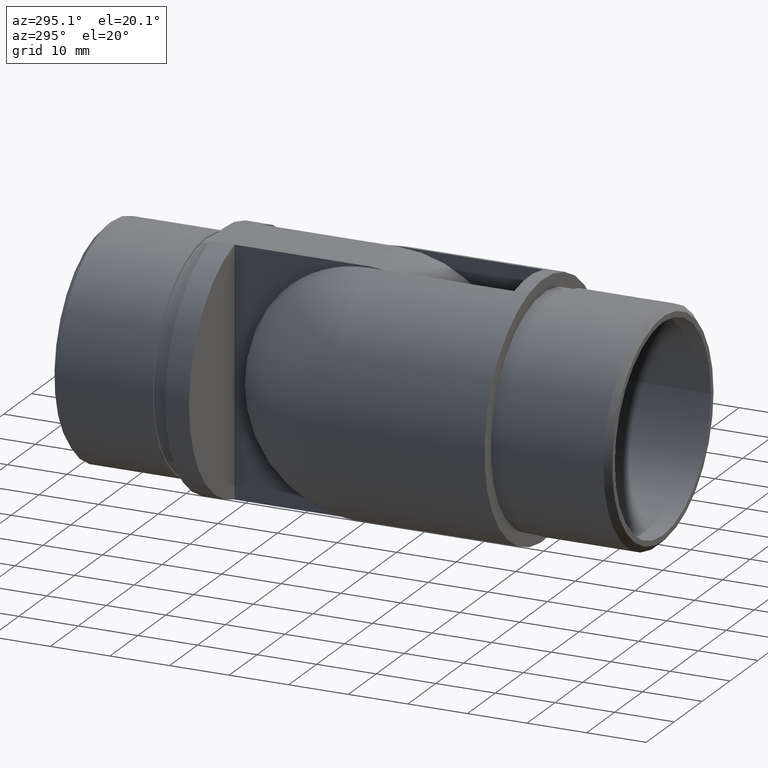
[diagram: clean part render]
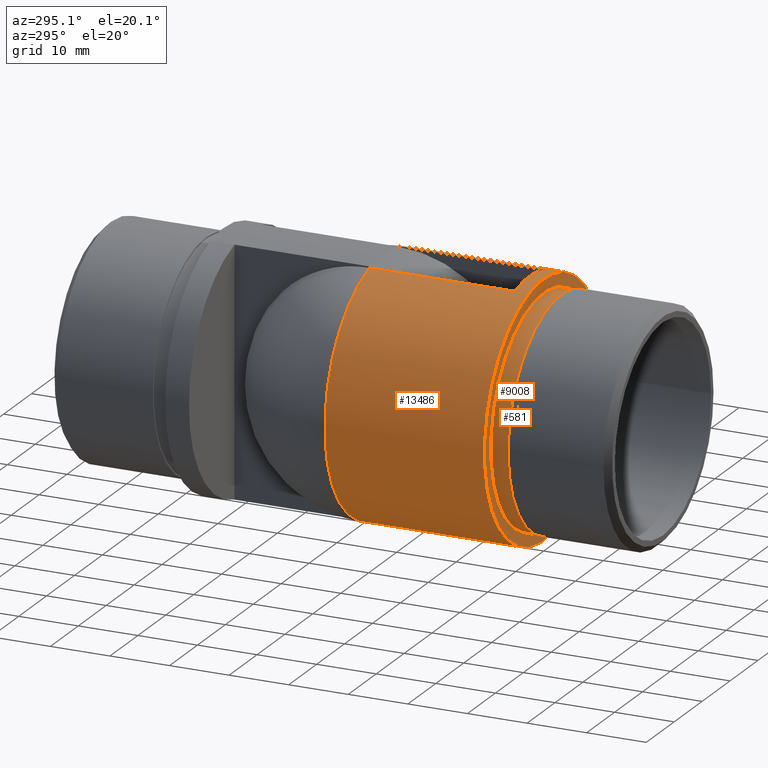
[diagram: same view with one multi-face feature highlighted, each face labeled with its STEP entity id]
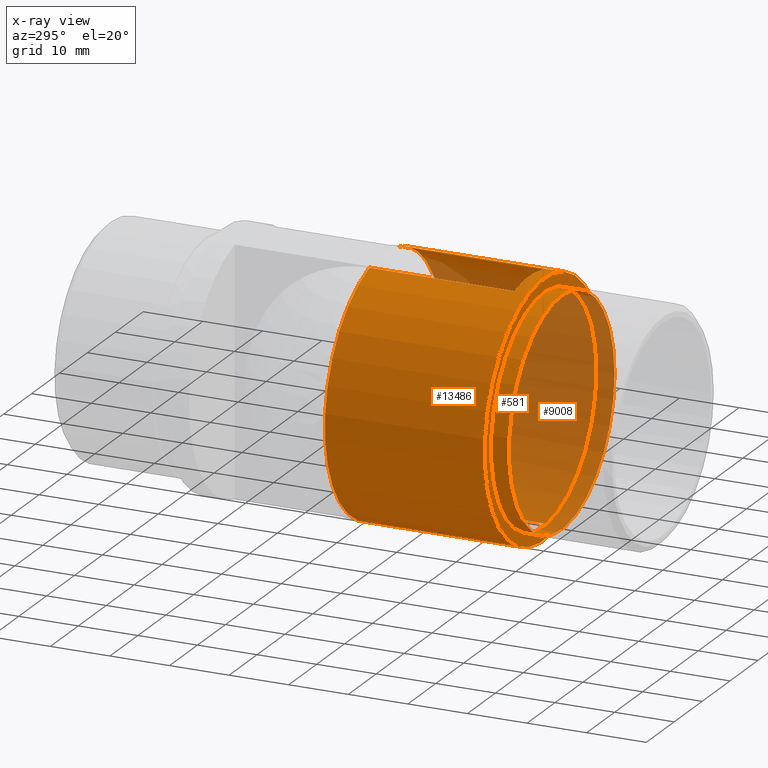
[diagram: x-ray of the same camera — body ghosted, the whole feature saturated]
A machine part, auxiliary view. The highlighted faces form ONE feature: a stepped (counterbored) hole: 2 coaxial cylindrical walls of radii 18.95 -> 21.2 mm joined by 1 annular planar shoulder face(s). The faces share edges in the B-rep.
The next image is the same camera in x-ray: the body ghosted and the whole hole feature saturated, so the bore chain is visible through the body.
Their STEP definitions:
[1] entity #13486 (Cylinder):
#40 = CARTESIAN_POINT ( 'NONE',  ( -5.249999999999998200, 26.80000000000000100, -20.53965676441551100 ) ) ;
#45 = ORIENTED_EDGE ( 'NONE', *, *, #2275, .F. ) ;
#142 = AXIS2_PLACEMENT_3D ( 'NONE', #1946, #17730, #7717 ) ;
#425 = CARTESIAN_POINT ( 'NONE',  ( 20.27359826025922000, 21.34359700877996600, -6.210934722845198800 ) ) ;
#494 = CARTESIAN_POINT ( 'NONE',  ( 20.59587053299181400, 20.25071701206385600, 5.045923669225064000 ) ) ;
#615 = DIRECTION ( 'NONE',  ( 6.837611295239389200E-017, -1.000000000000000000, -0.0000000000000000000 ) ) ;
#617 = CARTESIAN_POINT ( 'NONE',  ( 21.11694561521077800, 18.76567666383996200, 1.893736985380490800 ) ) ;
#682 = CARTESIAN_POINT ( 'NONE',  ( 21.17856188585539100, 18.60464637921042600, 1.093180675490439200 ) ) ;
#784 = DIRECTION ( 'NONE',  ( 6.837611295239389200E-017, -1.000000000000000000, -0.0000000000000000000 ) ) ;
#803 = CARTESIAN_POINT ( 'NONE',  ( 19.52888885728011900, 26.80000000000000400, -8.250000000000003600 ) ) ;
#867 = CARTESIAN_POINT ( 'NONE',  ( 5.250000000000005300, 6.830473686658685800E-016, 20.53965676441551100 ) ) ;
#1084 = LINE ( 'NONE', #5030, #8361 ) ;
#1223 = AXIS2_PLACEMENT_3D ( 'NONE', #7494, #7422, #17502 ) ;
#1671 = DIRECTION ( 'NONE',  ( 1.000000000000000000, 0.0000000000000000000, 0.0000000000000000000 ) ) ;
#1855 = VERTEX_POINT ( 'NONE', #5168 ) ;
#1874 = CARTESIAN_POINT ( 'NONE',  ( 19.52888885728011600, 26.24919490253268600, 8.250000000000007100 ) ) ;
#1946 = CARTESIAN_POINT ( 'NONE',  ( 1.238185012568044800E-031, -1.810844400339220100E-015, 0.0000000000000000000 ) ) ;
#2064 = CARTESIAN_POINT ( 'NONE',  ( -1.709402823809847200E-016, 2.500000000000000000, 0.0000000000000000000 ) ) ;
#2146 = LINE ( 'NONE', #15422, #11361 ) ;
#2206 = DIRECTION ( 'NONE',  ( 1.000000000000000000, 6.837611295239389200E-017, 0.0000000000000000000 ) ) ;
#2213 = CARTESIAN_POINT ( 'NONE',  ( 5.250000000000005300, 2.499999999999998700, 20.53965676441551100 ) ) ;
#2273 = CARTESIAN_POINT ( 'NONE',  ( 19.55765040324953200, 25.70529746351498800, -8.181637213754099100 ) ) ;
#2275 = EDGE_CURVE ( 'NONE', #14526, #15760, #16616, .T. ) ;
#2342 = CARTESIAN_POINT ( 'NONE',  ( 19.82601233956383200, 23.37174293850827000, -7.508762516186904700 ) ) ;
#2691 = FACE_OUTER_BOUND ( 'NONE', #5196, .T. ) ;
#2692 = EDGE_CURVE ( 'NONE', #8276, #10515, #17042, .T. ) ;
#2712 = ORIENTED_EDGE ( 'NONE', *, *, #18632, .T. ) ;
#2731 = ORIENTED_EDGE ( 'NONE', *, *, #17052, .F. ) ;
#3038 = LINE ( 'NONE', #867, #6435 ) ;
#3130 = EDGE_CURVE ( 'NONE', #13964, #14526, #13172, .T. ) ;
#3287 = CARTESIAN_POINT ( 'NONE',  ( 19.52888885728011900, 26.80000000000000400, -8.250000000000003600 ) ) ;
#3348 = CARTESIAN_POINT ( 'NONE',  ( 19.64517656579535700, 24.65006197968018900, 7.969591014790497100 ) ) ;
#3414 = CARTESIAN_POINT ( 'NONE',  ( 20.48887439059558000, 20.59140977172586400, 5.458865154775916800 ) ) ;
#3546 = CARTESIAN_POINT ( 'NONE',  ( 19.86549537052957600, 23.12551023275266400, 7.406188432139717100 ) ) ;
#3803 = CARTESIAN_POINT ( 'NONE',  ( 5.250000000000001800, 26.80000000000000100, 20.53965676441551100 ) ) ;
#4457 = EDGE_CURVE ( 'NONE', #8276, #18642, #9871, .T. ) ;
#4622 = DIRECTION ( 'NONE',  ( 6.837611295239389200E-017, -1.000000000000000000, -0.0000000000000000000 ) ) ;
#4704 = CARTESIAN_POINT ( 'NONE',  ( -5.249999999999995600, -6.830473686658673000E-016, -20.53965676441551100 ) ) ;
#4806 = CARTESIAN_POINT ( 'NONE',  ( 19.74559743585137300, 23.87229009600193300, 7.717756490944959900 ) ) ;
#4864 = CARTESIAN_POINT ( 'NONE',  ( 21.17407782886826700, 18.61680449465214000, -1.083095233639173500 ) ) ;
#4926 = CARTESIAN_POINT ( 'NONE',  ( 19.61807164526330600, 24.91290217732305800, 8.035830780628682400 ) ) ;
#4988 = CARTESIAN_POINT ( 'NONE',  ( 20.27316576508428300, 21.35355934539015600, 6.202466219610845300 ) ) ;
#5030 = CARTESIAN_POINT ( 'NONE',  ( -5.249999999999995600, -6.830473686658673000E-016, 20.53965676441551100 ) ) ;
#5168 = CARTESIAN_POINT ( 'NONE',  ( 21.19999999999999900, -3.612708057484694600E-016, 0.0000000000000000000 ) ) ;
#5196 = EDGE_LOOP ( 'NONE', ( #13362 ) ) ;
#5662 = AXIS2_PLACEMENT_3D ( 'NONE', #16281, #4622, #6129 ) ;
#5771 = ORIENTED_EDGE ( 'NONE', *, *, #8887, .T. ) ;
#5988 = DIRECTION ( 'NONE',  ( 6.837611295239389200E-017, -1.000000000000000000, -0.0000000000000000000 ) ) ;
#6067 = ORIENTED_EDGE ( 'NONE', *, *, #2692, .T. ) ;
#6129 = DIRECTION ( 'NONE',  ( 1.000000000000000000, 0.0000000000000000000, 0.0000000000000000000 ) ) ;
#6191 = CIRCLE ( 'NONE', #14055, 21.19999999999999600 ) ;
#6294 = DIRECTION ( 'NONE',  ( 2.065146995210484900E-016, 1.000000000000000000, 0.0000000000000000000 ) ) ;
#6388 = CARTESIAN_POINT ( 'NONE',  ( 20.11255397933488000, 21.98497431148832200, 6.704484393133963500 ) ) ;
#6435 = VECTOR ( 'NONE', #14065, 1000.000000000000000 ) ;
#6446 = CARTESIAN_POINT ( 'NONE',  ( 21.09122638265026900, 18.83333241509187100, 2.160675098070035500 ) ) ;
#6511 = CARTESIAN_POINT ( 'NONE',  ( 20.99753037849307100, 19.08455554526353700, 2.933678434760251400 ) ) ;
#6579 = CARTESIAN_POINT ( 'NONE',  ( 0.0000000000000000000, 0.0000000000000000000, 0.0000000000000000000 ) ) ;
#7422 = DIRECTION ( 'NONE',  ( 6.837611295239389200E-017, -1.000000000000000000, -0.0000000000000000000 ) ) ;
#7475 = CIRCLE ( 'NONE', #7916, 21.19999999999999600 ) ;
#7494 = CARTESIAN_POINT ( 'NONE',  ( -1.832479827124156500E-015, 26.80000000000000100, 0.0000000000000000000 ) ) ;
#7648 = CARTESIAN_POINT ( 'NONE',  ( 20.64761604697038800, 20.09431074088749000, -4.813289260449787200 ) ) ;
#7707 = CIRCLE ( 'NONE', #142, 21.19999999999999900 ) ;
#7710 = CARTESIAN_POINT ( 'NONE',  ( 20.79519931272447800, 19.64852888558960200, 4.148603889439098900 ) ) ;
#7717 = DIRECTION ( 'NONE',  ( 1.000000000000000000, 6.837611295239389200E-017, 0.0000000000000000000 ) ) ;
#7760 = CARTESIAN_POINT ( 'NONE',  ( -1.709402823809847200E-016, 2.500000000000000000, 0.0000000000000000000 ) ) ;
#7839 = CARTESIAN_POINT ( 'NONE',  ( 21.19974245855503300, 18.55066180387651500, 0.5542095061953471500 ) ) ;
#7898 = CARTESIAN_POINT ( 'NONE',  ( 21.15849631988322700, 18.65709639814895500, -1.352437538479934300 ) ) ;
#7916 = AXIS2_PLACEMENT_3D ( 'NONE', #2064, #14828, #16400 ) ;
#7942 = CARTESIAN_POINT ( 'NONE',  ( 5.250000000000005300, 2.499999999999998700, -20.53965676441551100 ) ) ;
#7990 = CARTESIAN_POINT ( 'NONE',  ( -5.249999999999996400, 26.80000000000000100, 20.53965676441551500 ) ) ;
#8276 = VERTEX_POINT ( 'NONE', #13701 ) ;
#8361 = VECTOR ( 'NONE', #784, 1000.000000000000000 ) ;
#8668 = CARTESIAN_POINT ( 'NONE',  ( 5.250000000000003600, 26.80000000000000100, -20.53965676441551100 ) ) ;
#8887 = EDGE_CURVE ( 'NONE', #14471, #15760, #12204, .T. ) ;
#8910 = ORIENTED_EDGE ( 'NONE', *, *, #3130, .F. ) ;
#9102 = CARTESIAN_POINT ( 'NONE',  ( 20.43582040085573900, 20.77687645385850200, -5.644100342962176800 ) ) ;
#9159 = CARTESIAN_POINT ( 'NONE',  ( 20.88546439064928300, 19.39302912338451200, -3.673753017804800300 ) ) ;
#9260 = DIRECTION ( 'NONE',  ( 1.000000000000000000, -2.045664476387744500E-016, 0.0000000000000000000 ) ) ;
#9281 = CARTESIAN_POINT ( 'NONE',  ( 21.20012527474675300, 18.54967808166271200, -0.2621935477816822500 ) ) ;
#9411 = CARTESIAN_POINT ( 'NONE',  ( 19.53471904926210500, 26.25051598634353000, -8.236238732553147200 ) ) ;
#9466 = CARTESIAN_POINT ( 'NONE',  ( 19.64193688291723900, 24.62895070445216600, -7.977973454131766400 ) ) ;
#9871 = B_SPLINE_CURVE_WITH_KNOTS ( 'NONE', 3,
 ( #17724, #1874, #12131, #4926, #3348, #14964, #4806, #3546, #13558, #6388, #10748, #4988, #13360, #3414, #494, #7710, #16404, #6511, #15029, #6446, #617, #682, #7839, #9281, #13422, #4864, #7898, #17921, #12205, #9159, #13623, #7648, #10557, #17665, #9102, #425, #10501, #11935, #14832, #14902, #2342, #12383, #9466, #17987, #2273, #9411, #10818, #803 ),
 .UNSPECIFIED., .F., .F.,
 ( 4, 2, 2, 2, 2, 2, 2, 2, 2, 2, 2, 2, 2, 2, 2, 2, 2, 2, 2, 2, 2, 2, 2, 4 ),
 ( 0.0000000000000000000, 0.001627534562146831000, 0.002441301843220241800, 0.003255069124293652800, 0.004882603686440474900, 0.005696370967513892000, 0.006510138248587307400, 0.008137672810734150300, 0.009765207372880991400, 0.01057897465395441300, 0.01139274193502783300, 0.01302027649717467400, 0.01383404377824809500, 0.01464781105932151800, 0.01627534562146836000, 0.01790288018361520200, 0.01871664746468862000, 0.01953041474576203800, 0.02115794930790888500, 0.02197171658898230300, 0.02278548387005572100, 0.02441301843220254300, 0.02522678571327595000, 0.02604055299434935400 ),
 .UNSPECIFIED. ) ;
#10423 = EDGE_CURVE ( 'NONE', #1855, #1855, #7707, .T. ) ;
#10494 = CARTESIAN_POINT ( 'NONE',  ( -1.832479827124156500E-015, 26.80000000000000100, 0.0000000000000000000 ) ) ;
#10501 = CARTESIAN_POINT ( 'NONE',  ( 20.16553893495708400, 21.75431675288486500, -6.549103662222624900 ) ) ;
#10515 = VERTEX_POINT ( 'NONE', #3803 ) ;
#10557 = CARTESIAN_POINT ( 'NONE',  ( 20.59615867333463900, 20.25396323857702200, -5.028346798361462300 ) ) ;
#10748 = CARTESIAN_POINT ( 'NONE',  ( 20.16589479011517800, 21.76752761044872700, 6.542822377078926400 ) ) ;
#10818 = CARTESIAN_POINT ( 'NONE',  ( 19.52888885728011900, 26.52453809431624200, -8.250000000000000000 ) ) ;
#10902 = EDGE_CURVE ( 'NONE', #14821, #18096, #7475, .T. ) ;
#11124 = EDGE_LOOP ( 'NONE', ( #15426, #6067, #17391, #11707, #15708, #5771, #45, #8910, #2731, #2712 ) ) ;
#11361 = VECTOR ( 'NONE', #14132, 1000.000000000000000 ) ;
#11707 = ORIENTED_EDGE ( 'NONE', *, *, #10902, .F. ) ;
#11935 = CARTESIAN_POINT ( 'NONE',  ( 20.01253373008952300, 22.42154467634897600, -6.997386907337704200 ) ) ;
#12131 = CARTESIAN_POINT ( 'NONE',  ( 19.55220157462567700, 25.70880850925883400, 8.195404763618441300 ) ) ;
#12204 = CIRCLE ( 'NONE', #1223, 21.19999999999999600 ) ;
#12205 = CARTESIAN_POINT ( 'NONE',  ( 21.03770787017412400, 18.97403378586788100, -2.667195459302253100 ) ) ;
#12310 = CARTESIAN_POINT ( 'NONE',  ( -5.249999999999995600, 2.500000000000000900, 20.53965676441551100 ) ) ;
#12383 = CARTESIAN_POINT ( 'NONE',  ( 19.70664357105009000, 24.11429234633923000, -7.819035644867798700 ) ) ;
#13053 = AXIS2_PLACEMENT_3D ( 'NONE', #6579, #615, #2206 ) ;
#13172 = CIRCLE ( 'NONE', #13578, 21.19999999999999600 ) ;
#13277 = VERTEX_POINT ( 'NONE', #8668 ) ;
#13360 = CARTESIAN_POINT ( 'NONE',  ( 20.32728573814139100, 21.15610283693078100, 6.023267399249447400 ) ) ;
#13362 = ORIENTED_EDGE ( 'NONE', *, *, #10423, .F. ) ;
#13422 = CARTESIAN_POINT ( 'NONE',  ( 21.19495955829759000, 18.56292361006371300, -0.5369883706671277900 ) ) ;
#13486 = ADVANCED_FACE ( 'NONE', ( #13914, #2691 ), #18442, .T. ) ;
#13558 = CARTESIAN_POINT ( 'NONE',  ( 19.95938873929013000, 22.65412517270792800, 7.152800525084056300 ) ) ;
#13578 = AXIS2_PLACEMENT_3D ( 'NONE', #7760, #6294, #9260 ) ;
#13623 = CARTESIAN_POINT ( 'NONE',  ( 20.79548403585618400, 19.64782995502631000, -4.146691624166547500 ) ) ;
#13701 = CARTESIAN_POINT ( 'NONE',  ( 19.52888885728011900, 26.80000000000000400, 8.250000000000003600 ) ) ;
#13914 = FACE_OUTER_BOUND ( 'NONE', #11124, .T. ) ;
#13964 = VERTEX_POINT ( 'NONE', #7942 ) ;
#14000 = EDGE_CURVE ( 'NONE', #14471, #14821, #1084, .T. ) ;
#14055 = AXIS2_PLACEMENT_3D ( 'NONE', #10494, #5988, #1671 ) ;
#14065 = DIRECTION ( 'NONE',  ( -6.837611295239389200E-017, 1.000000000000000000, 0.0000000000000000000 ) ) ;
#14132 = DIRECTION ( 'NONE',  ( 6.837611295239389200E-017, -1.000000000000000000, -0.0000000000000000000 ) ) ;
#14471 = VERTEX_POINT ( 'NONE', #7990 ) ;
#14526 = VERTEX_POINT ( 'NONE', #16082 ) ;
#14737 = DIRECTION ( 'NONE',  ( -6.837611295239389200E-017, 1.000000000000000000, 0.0000000000000000000 ) ) ;
#14821 = VERTEX_POINT ( 'NONE', #12310 ) ;
#14828 = DIRECTION ( 'NONE',  ( 2.065146995210484900E-016, 1.000000000000000000, 0.0000000000000000000 ) ) ;
#14832 = CARTESIAN_POINT ( 'NONE',  ( 19.96279421733243000, 22.65392437753495600, -7.137601982197288900 ) ) ;
#14902 = CARTESIAN_POINT ( 'NONE',  ( 19.86952944149270600, 23.12917034854743600, -7.393261444956631400 ) ) ;
#14964 = CARTESIAN_POINT ( 'NONE',  ( 19.70896149919679300, 24.12933817813575400, 7.810517259918375600 ) ) ;
#15029 = CARTESIAN_POINT ( 'NONE',  ( 21.03153090803163700, 18.99274347675746500, 2.680122174105653300 ) ) ;
#15271 = VECTOR ( 'NONE', #14737, 1000.000000000000000 ) ;
#15422 = CARTESIAN_POINT ( 'NONE',  ( 5.250000000000005300, 6.830473686658685800E-016, -20.53965676441551100 ) ) ;
#15426 = ORIENTED_EDGE ( 'NONE', *, *, #4457, .F. ) ;
#15708 = ORIENTED_EDGE ( 'NONE', *, *, #14000, .F. ) ;
#15760 = VERTEX_POINT ( 'NONE', #40 ) ;
#16082 = CARTESIAN_POINT ( 'NONE',  ( -5.249999999999995600, 2.500000000000000900, -20.53965676441551100 ) ) ;
#16281 = CARTESIAN_POINT ( 'NONE',  ( -1.832479827124156500E-015, 26.80000000000000100, 0.0000000000000000000 ) ) ;
#16400 = DIRECTION ( 'NONE',  ( 1.000000000000000000, -2.045664476387744500E-016, 1.776356839400250500E-015 ) ) ;
#16404 = CARTESIAN_POINT ( 'NONE',  ( 20.88475693595552600, 19.39508427951553000, 3.676674087177919300 ) ) ;
#16616 = LINE ( 'NONE', #4704, #15271 ) ;
#17042 = CIRCLE ( 'NONE', #5662, 21.19999999999999600 ) ;
#17052 = EDGE_CURVE ( 'NONE', #13277, #13964, #2146, .T. ) ;
#17391 = ORIENTED_EDGE ( 'NONE', *, *, #18167, .F. ) ;
#17502 = DIRECTION ( 'NONE',  ( 1.000000000000000000, 0.0000000000000000000, 0.0000000000000000000 ) ) ;
#17665 = CARTESIAN_POINT ( 'NONE',  ( 20.49018369183857800, 20.59544740452538700, -5.444115712995284200 ) ) ;
#17724 = CARTESIAN_POINT ( 'NONE',  ( 19.52888885728011900, 26.80000000000000400, 8.250000000000003600 ) ) ;
#17730 = DIRECTION ( 'NONE',  ( 6.837611295239389200E-017, -1.000000000000000000, -0.0000000000000000000 ) ) ;
#17921 = CARTESIAN_POINT ( 'NONE',  ( 21.09745605542135400, 18.81659206776067700, -2.149782139094921000 ) ) ;
#17987 = CARTESIAN_POINT ( 'NONE',  ( 19.57485899129942900, 25.43291472027000200, -8.140536328005550700 ) ) ;
#18096 = VERTEX_POINT ( 'NONE', #2213 ) ;
#18167 = EDGE_CURVE ( 'NONE', #18096, #10515, #3038, .T. ) ;
#18442 = CYLINDRICAL_SURFACE ( 'NONE', #13053, 21.19999999999999600 ) ;
#18632 = EDGE_CURVE ( 'NONE', #13277, #18642, #6191, .T. ) ;
#18642 = VERTEX_POINT ( 'NONE', #3287 ) ;
[2] entity #9008 (Cylinder):
#10 = CARTESIAN_POINT ( 'NONE',  ( 0.0000000000000000000, 0.0000000000000000000, 0.0000000000000000000 ) ) ;
#716 = FACE_OUTER_BOUND ( 'NONE', #7161, .T. ) ;
#2110 = VERTEX_POINT ( 'NONE', #3729 ) ;
#2310 = DIRECTION ( 'NONE',  ( 1.000000000000000000, 6.865660195158863000E-017, 0.0000000000000000000 ) ) ;
#2546 = AXIS2_PLACEMENT_3D ( 'NONE', #10, #8695, #4451 ) ;
#2882 = ORIENTED_EDGE ( 'NONE', *, *, #5050, .T. ) ;
#3729 = CARTESIAN_POINT ( 'NONE',  ( 18.95000000000001000, 1.287577790543433800E-015, 0.0000000000000000000 ) ) ;
#4451 = DIRECTION ( 'NONE',  ( 1.000000000000000000, 6.794605754846613000E-017, 0.0000000000000000000 ) ) ;
#5050 = EDGE_CURVE ( 'NONE', #2110, #2110, #9617, .T. ) ;
#6758 = AXIS2_PLACEMENT_3D ( 'NONE', #13718, #16441, #2310 ) ;
#7161 = EDGE_LOOP ( 'NONE', ( #2882 ) ) ;
#7840 = CIRCLE ( 'NONE', #6758, 18.95000000000001000 ) ;
#8463 = CARTESIAN_POINT ( 'NONE',  ( 18.95000000000001000, -2.999999999999998700, 0.0000000000000000000 ) ) ;
#8499 = CARTESIAN_POINT ( 'NONE',  ( 2.038381726453983900E-016, -3.000000000000000000, 0.0000000000000000000 ) ) ;
#8695 = DIRECTION ( 'NONE',  ( 6.794605754846613000E-017, -1.000000000000000000, 0.0000000000000000000 ) ) ;
#9008 = ADVANCED_FACE ( 'NONE', ( #13289, #716 ), #16926, .T. ) ;
#9617 = CIRCLE ( 'NONE', #2546, 18.95000000000001000 ) ;
#12441 = VERTEX_POINT ( 'NONE', #8463 ) ;
#13289 = FACE_OUTER_BOUND ( 'NONE', #15518, .T. ) ;
#13718 = CARTESIAN_POINT ( 'NONE',  ( 2.038381726453983900E-016, -3.000000000000000000, 0.0000000000000000000 ) ) ;
#15342 = ORIENTED_EDGE ( 'NONE', *, *, #16571, .F. ) ;
#15376 = DIRECTION ( 'NONE',  ( -1.000000000000000000, -6.865660195158863000E-017, 0.0000000000000000000 ) ) ;
#15518 = EDGE_LOOP ( 'NONE', ( #15342 ) ) ;
#15623 = DIRECTION ( 'NONE',  ( -6.794605754846613000E-017, 1.000000000000000000, -0.0000000000000000000 ) ) ;
#16441 = DIRECTION ( 'NONE',  ( 6.794605754846613000E-017, -1.000000000000000000, 0.0000000000000000000 ) ) ;
#16571 = EDGE_CURVE ( 'NONE', #12441, #12441, #7840, .T. ) ;
#16926 = CYLINDRICAL_SURFACE ( 'NONE', #17623, 18.95000000000001000 ) ;
#17623 = AXIS2_PLACEMENT_3D ( 'NONE', #8499, #15623, #15376 ) ;
[3] entity #581 (Plane):
#10 = CARTESIAN_POINT ( 'NONE',  ( 0.0000000000000000000, 0.0000000000000000000, 0.0000000000000000000 ) ) ;
#142 = AXIS2_PLACEMENT_3D ( 'NONE', #1946, #17730, #7717 ) ;
#532 = ORIENTED_EDGE ( 'NONE', *, *, #10423, .T. ) ;
#581 = ADVANCED_FACE ( 'NONE', ( #13014, #10334 ), #17447, .T. ) ;
#670 = EDGE_LOOP ( 'NONE', ( #532 ) ) ;
#1452 = DIRECTION ( 'NONE',  ( 6.837611295239389200E-017, -1.000000000000000000, -0.0000000000000000000 ) ) ;
#1855 = VERTEX_POINT ( 'NONE', #5168 ) ;
#1946 = CARTESIAN_POINT ( 'NONE',  ( 1.238185012568044800E-031, -1.810844400339220100E-015, 0.0000000000000000000 ) ) ;
#2110 = VERTEX_POINT ( 'NONE', #3729 ) ;
#2546 = AXIS2_PLACEMENT_3D ( 'NONE', #10, #8695, #4451 ) ;
#3006 = DIRECTION ( 'NONE',  ( 1.000000000000000000, 6.837611295239389200E-017, 0.0000000000000000000 ) ) ;
#3729 = CARTESIAN_POINT ( 'NONE',  ( 18.95000000000001000, 1.287577790543433800E-015, 0.0000000000000000000 ) ) ;
#4451 = DIRECTION ( 'NONE',  ( 1.000000000000000000, 6.794605754846613000E-017, 0.0000000000000000000 ) ) ;
#4808 = AXIS2_PLACEMENT_3D ( 'NONE', #11592, #1452, #3006 ) ;
#5050 = EDGE_CURVE ( 'NONE', #2110, #2110, #9617, .T. ) ;
#5168 = CARTESIAN_POINT ( 'NONE',  ( 21.19999999999999900, -3.612708057484694600E-016, 0.0000000000000000000 ) ) ;
#6518 = EDGE_LOOP ( 'NONE', ( #18191 ) ) ;
#7707 = CIRCLE ( 'NONE', #142, 21.19999999999999900 ) ;
#7717 = DIRECTION ( 'NONE',  ( 1.000000000000000000, 6.837611295239389200E-017, 0.0000000000000000000 ) ) ;
#8695 = DIRECTION ( 'NONE',  ( 6.794605754846613000E-017, -1.000000000000000000, 0.0000000000000000000 ) ) ;
#9617 = CIRCLE ( 'NONE', #2546, 18.95000000000001000 ) ;
#10334 = FACE_OUTER_BOUND ( 'NONE', #670, .T. ) ;
#10423 = EDGE_CURVE ( 'NONE', #1855, #1855, #7707, .T. ) ;
#11592 = CARTESIAN_POINT ( 'NONE',  ( 21.19999999999999900, 5.441513944211405900E-016, 0.0000000000000000000 ) ) ;
#13014 = FACE_BOUND ( 'NONE', #6518, .T. ) ;
#17447 = PLANE ( 'NONE',  #4808 ) ;
#17730 = DIRECTION ( 'NONE',  ( 6.837611295239389200E-017, -1.000000000000000000, -0.0000000000000000000 ) ) ;
#18191 = ORIENTED_EDGE ( 'NONE', *, *, #5050, .F. ) ;